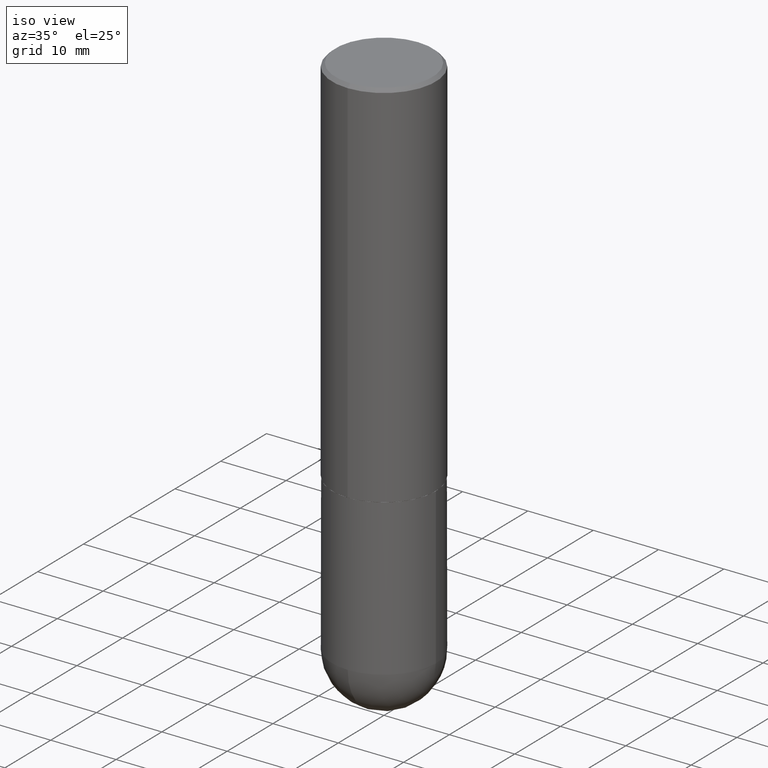
[diagram: clean part render]
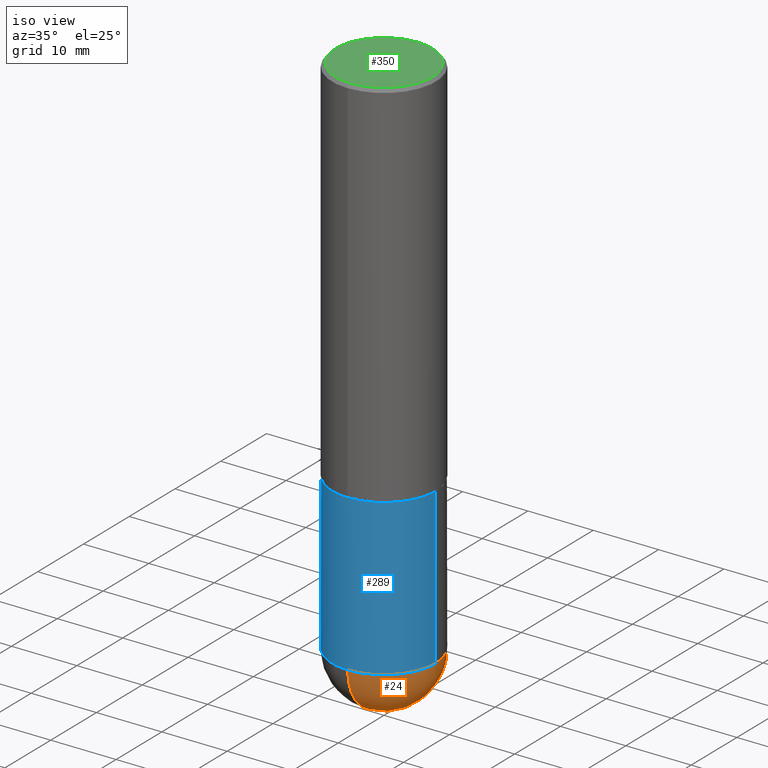
[diagram: same view with three faces highlighted in distinct colors, each labeled with its STEP entity id]
A machine part, iso view with three faces highlighted in distinct colors.
Their STEP definitions:

[orange] entity #24 — the highlighted spherical surface has radius 7.9375 mm.
#3 = DIRECTION ( 'NONE',  ( 1.000000000000000000, -6.982962677686269077E-15, 0.000000000000000000 ) ) ;
#5 = EDGE_CURVE ( 'NONE', #403, #271, #26, .T. ) ;
#24 = ADVANCED_FACE ( 'NONE', ( #273 ), #123, .T. ) ;
#26 = CIRCLE ( 'NONE', #283, 0.3125000000000002776 ) ;
#27 = CIRCLE ( 'NONE', #239, 0.3125000000000000000 ) ;
#43 = ORIENTED_EDGE ( 'NONE', *, *, #5, .T. ) ;
#85 = CARTESIAN_POINT ( 'NONE',  ( 7.463812041801236655E-29, -1.160327913570257494E-14, -3.187500000000000000 ) ) ;
#94 = CARTESIAN_POINT ( 'NONE',  ( 7.794931819715121781E-29, -1.112909676756252622E-14, -3.187500000000000000 ) ) ;
#123 = SPHERICAL_SURFACE ( 'NONE', #232, 0.3125000000000002776 ) ;
#129 = CARTESIAN_POINT ( 'NONE',  ( 7.463812041801236655E-29, -1.160327913570257494E-14, -3.187500000000000000 ) ) ;
#136 = VERTEX_POINT ( 'NONE', #412 ) ;
#156 = ORIENTED_EDGE ( 'NONE', *, *, #237, .F. ) ;
#189 = ORIENTED_EDGE ( 'NONE', *, *, #210, .F. ) ;
#199 = CARTESIAN_POINT ( 'NONE',  ( 7.794931819715121781E-29, -1.112909676756252622E-14, -3.187500000000000000 ) ) ;
#210 = EDGE_CURVE ( 'NONE', #403, #211, #347, .T. ) ;
#211 = VERTEX_POINT ( 'NONE', #355 ) ;
#213 = AXIS2_PLACEMENT_3D ( 'NONE', #94, #381, #356 ) ;
#220 = CARTESIAN_POINT ( 'NONE',  ( 7.463812041801236655E-29, -1.160327913570257494E-14, -3.187500000000000000 ) ) ;
#232 = AXIS2_PLACEMENT_3D ( 'NONE', #220, #346, #372 ) ;
#235 = ORIENTED_EDGE ( 'NONE', *, *, #295, .F. ) ;
#237 = EDGE_CURVE ( 'NONE', #136, #271, #277, .T. ) ;
#239 = AXIS2_PLACEMENT_3D ( 'NONE', #199, #390, #3 ) ;
#256 = DIRECTION ( 'NONE',  ( -1.000000000000000000, 7.105427357601001070E-15, -4.926315508542082329E-29 ) ) ;
#271 = VERTEX_POINT ( 'NONE', #331 ) ;
#273 = FACE_OUTER_BOUND ( 'NONE', #377, .T. ) ;
#277 = CIRCLE ( 'NONE', #213, 0.3125000000000000000 ) ;
#283 = AXIS2_PLACEMENT_3D ( 'NONE', #85, #315, #341 ) ;
#292 = DIRECTION ( 'NONE',  ( -7.105427357601000281E-15, -1.000000000000000000, 0.000000000000000000 ) ) ;
#295 = EDGE_CURVE ( 'NONE', #211, #136, #27, .T. ) ;
#308 = AXIS2_PLACEMENT_3D ( 'NONE', #129, #256, #292 ) ;
#315 = DIRECTION ( 'NONE',  ( 1.000000000000000000, -6.982962677686265922E-15, 4.883557194083112340E-29 ) ) ;
#331 = CARTESIAN_POINT ( 'NONE',  ( 2.182175836777035261E-15, 0.3124999999999887867, -3.187500000000000888 ) ) ;
#341 = DIRECTION ( 'NONE',  ( 6.982962677686265922E-15, 1.000000000000000000, 0.000000000000000000 ) ) ;
#346 = DIRECTION ( 'NONE',  ( -1.000000000000000000, 6.982962677686265922E-15, -4.883557194083112901E-29 ) ) ;
#347 = CIRCLE ( 'NONE', #308, 0.3125000000000002776 ) ;
#355 = CARTESIAN_POINT ( 'NONE',  ( -2.220446049250237350E-15, -0.3125000000000114908, -3.187499999999998668 ) ) ;
#356 = DIRECTION ( 'NONE',  ( 1.000000000000000000, -6.982962677686269077E-15, 0.000000000000000000 ) ) ;
#364 = CARTESIAN_POINT ( 'NONE',  ( 8.241383017002520278E-29, -1.267523194785438148E-14, -3.500000000000000444 ) ) ;
#372 = DIRECTION ( 'NONE',  ( 6.982962677686265922E-15, 1.000000000000000000, -3.496765431890253764E-15 ) ) ;
#377 = EDGE_LOOP ( 'NONE', ( #189, #43, #156, #235 ) ) ;
#381 = DIRECTION ( 'NONE',  ( -2.445468806185136597E-29, 3.491481338843145583E-15, 1.000000000000000000 ) ) ;
#390 = DIRECTION ( 'NONE',  ( -2.445468806185136597E-29, 3.491481338843145583E-15, 1.000000000000000000 ) ) ;
#403 = VERTEX_POINT ( 'NONE', #364 ) ;
#412 = CARTESIAN_POINT ( 'NONE',  ( 0.3125000000000000000, -1.167464072675676384E-14, -3.187500000000000000 ) ) ;

[blue] entity #289 — the highlighted cylindrical surface (partial cylindrical patch) has radius 7.9375 mm, axis along (-0, 0, 1).
#3 = DIRECTION ( 'NONE',  ( 1.000000000000000000, -6.982962677686269077E-15, 0.000000000000000000 ) ) ;
#14 = ORIENTED_EDGE ( 'NONE', *, *, #176, .F. ) ;
#17 = EDGE_CURVE ( 'NONE', #136, #217, #318, .T. ) ;
#19 = VECTOR ( 'NONE', #320, 39.37007874015748143 ) ;
#27 = CIRCLE ( 'NONE', #239, 0.3125000000000000000 ) ;
#32 = DIRECTION ( 'NONE',  ( 1.000000000000000000, -6.982962677686269077E-15, 0.000000000000000000 ) ) ;
#36 = ORIENTED_EDGE ( 'NONE', *, *, #295, .T. ) ;
#38 = AXIS2_PLACEMENT_3D ( 'NONE', #172, #361, #32 ) ;
#40 = VERTEX_POINT ( 'NONE', #49 ) ;
#49 = CARTESIAN_POINT ( 'NONE',  ( -0.3125000000000000000, -7.272018840729490833E-15, -3.187500000000000000 ) ) ;
#70 = FACE_OUTER_BOUND ( 'NONE', #72, .T. ) ;
#72 = EDGE_LOOP ( 'NONE', ( #14, #146, #36, #158, #101 ) ) ;
#99 = CARTESIAN_POINT ( 'NONE',  ( -0.3125000000000000000, -7.272018840729487678E-15, -2.249999999999999556 ) ) ;
#101 = ORIENTED_EDGE ( 'NONE', *, *, #229, .F. ) ;
#119 = AXIS2_PLACEMENT_3D ( 'NONE', #359, #198, #231 ) ;
#136 = VERTEX_POINT ( 'NONE', #412 ) ;
#146 = ORIENTED_EDGE ( 'NONE', *, *, #380, .T. ) ;
#147 = VECTOR ( 'NONE', #279, 39.37007874015748143 ) ;
#151 = CARTESIAN_POINT ( 'NONE',  ( 0.3125000000000000000, -2.182175836776958347E-15, 1.523805242436230075E-29 ) ) ;
#158 = ORIENTED_EDGE ( 'NONE', *, *, #17, .T. ) ;
#162 = CIRCLE ( 'NONE', #204, 0.3125000000000000000 ) ;
#163 = LINE ( 'NONE', #287, #19 ) ;
#172 = CARTESIAN_POINT ( 'NONE',  ( 7.794931819715121781E-29, -1.112909676756252622E-14, -3.187500000000000000 ) ) ;
#176 = EDGE_CURVE ( 'NONE', #40, #299, #163, .T. ) ;
#177 = CYLINDRICAL_SURFACE ( 'NONE', #119, 0.3125000000000000000 ) ;
#194 = DIRECTION ( 'NONE',  ( 1.000000000000000000, -6.982962677686269077E-15, 0.000000000000000000 ) ) ;
#198 = DIRECTION ( 'NONE',  ( -2.445468806185136597E-29, 3.491481338843145583E-15, 1.000000000000000000 ) ) ;
#199 = CARTESIAN_POINT ( 'NONE',  ( 7.794931819715121781E-29, -1.112909676756252622E-14, -3.187500000000000000 ) ) ;
#204 = AXIS2_PLACEMENT_3D ( 'NONE', #319, #386, #194 ) ;
#211 = VERTEX_POINT ( 'NONE', #355 ) ;
#217 = VERTEX_POINT ( 'NONE', #385 ) ;
#226 = CIRCLE ( 'NONE', #38, 0.3125000000000000000 ) ;
#229 = EDGE_CURVE ( 'NONE', #299, #217, #162, .T. ) ;
#231 = DIRECTION ( 'NONE',  ( 1.000000000000000000, -6.982962677686266711E-15, 4.876176775795936353E-29 ) ) ;
#239 = AXIS2_PLACEMENT_3D ( 'NONE', #199, #390, #3 ) ;
#279 = DIRECTION ( 'NONE',  ( -2.445468806185136877E-29, 3.491481338843145188E-15, 1.000000000000000000 ) ) ;
#287 = CARTESIAN_POINT ( 'NONE',  ( -0.3125000000000000000, 2.220446049250313081E-15, -1.537167215704658232E-29 ) ) ;
#289 = ADVANCED_FACE ( 'NONE', ( #70 ), #177, .T. ) ;
#295 = EDGE_CURVE ( 'NONE', #211, #136, #27, .T. ) ;
#299 = VERTEX_POINT ( 'NONE', #99 ) ;
#318 = LINE ( 'NONE', #151, #147 ) ;
#319 = CARTESIAN_POINT ( 'NONE',  ( 5.502304813916556222E-29, -7.855833012397076871E-15, -2.249999999999999556 ) ) ;
#320 = DIRECTION ( 'NONE',  ( -2.445468806185136877E-29, 3.491481338843145188E-15, 1.000000000000000000 ) ) ;
#355 = CARTESIAN_POINT ( 'NONE',  ( -2.220446049250237350E-15, -0.3125000000000114908, -3.187499999999998668 ) ) ;
#359 = CARTESIAN_POINT ( 'NONE',  ( 0.000000000000000000, 0.000000000000000000, 0.000000000000000000 ) ) ;
#361 = DIRECTION ( 'NONE',  ( -2.445468806185136597E-29, 3.491481338843145583E-15, 1.000000000000000000 ) ) ;
#380 = EDGE_CURVE ( 'NONE', #40, #211, #226, .T. ) ;
#385 = CARTESIAN_POINT ( 'NONE',  ( 0.3125000000000000000, -1.003800884917403522E-14, -2.249999999999999556 ) ) ;
#386 = DIRECTION ( 'NONE',  ( -2.445468806185136597E-29, 3.491481338843145583E-15, 1.000000000000000000 ) ) ;
#390 = DIRECTION ( 'NONE',  ( -2.445468806185136597E-29, 3.491481338843145583E-15, 1.000000000000000000 ) ) ;
#412 = CARTESIAN_POINT ( 'NONE',  ( 0.3125000000000000000, -1.167464072675676384E-14, -3.187500000000000000 ) ) ;

[green] entity #350 — the highlighted planar face has unit normal (0, -0, -1).
#31 = CARTESIAN_POINT ( 'NONE',  ( 6.296900960775503853E-46, -8.987936348817900663E-32, -2.574587102886920740E-17 ) ) ;
#35 = PLANE ( 'NONE',  #352 ) ;
#39 = FACE_OUTER_BOUND ( 'NONE', #369, .T. ) ;
#81 = VERTEX_POINT ( 'NONE', #190 ) ;
#102 = AXIS2_PLACEMENT_3D ( 'NONE', #31, #131, #252 ) ;
#127 = CARTESIAN_POINT ( 'NONE',  ( -2.075300644325888676E-15, -0.2925000000000001488, 9.953776244944845689E-16 ) ) ;
#131 = DIRECTION ( 'NONE',  ( -2.445790609964098896E-29, 3.491020497515737760E-15, 1.000000000000000000 ) ) ;
#143 = VERTEX_POINT ( 'NONE', #127 ) ;
#180 = CIRCLE ( 'NONE', #262, 0.2925000000000001488 ) ;
#190 = CARTESIAN_POINT ( 'NONE',  ( 2.112346210000096627E-15, 0.2925000000000001488, -1.046869366552222971E-15 ) ) ;
#205 = DIRECTION ( 'NONE',  ( -6.982962677686265922E-15, -1.000000000000000000, 3.491020497515737760E-15 ) ) ;
#219 = EDGE_CURVE ( 'NONE', #81, #143, #316, .T. ) ;
#238 = CARTESIAN_POINT ( 'NONE',  ( 6.296900960775503853E-46, -8.987936348817900663E-32, -2.574587102886920740E-17 ) ) ;
#252 = DIRECTION ( 'NONE',  ( -6.982962677686265922E-15, -1.000000000000000000, 3.491020497515737760E-15 ) ) ;
#262 = AXIS2_PLACEMENT_3D ( 'NONE', #238, #293, #205 ) ;
#263 = ORIENTED_EDGE ( 'NONE', *, *, #219, .T. ) ;
#293 = DIRECTION ( 'NONE',  ( -2.445790609964098896E-29, 3.491020497515737760E-15, 1.000000000000000000 ) ) ;
#297 = CARTESIAN_POINT ( 'NONE',  ( 2.042516583223233723E-15, 0.2925000000000001488, -1.033996431037788420E-15 ) ) ;
#304 = DIRECTION ( 'NONE',  ( 6.982962677686265922E-15, 1.000000000000000000, -3.491020497515737366E-15 ) ) ;
#316 = CIRCLE ( 'NONE', #102, 0.2925000000000001488 ) ;
#328 = DIRECTION ( 'NONE',  ( 2.445790609964098896E-29, -3.491020497515737366E-15, -1.000000000000000000 ) ) ;
#350 = ADVANCED_FACE ( 'NONE', ( #39 ), #35, .F. ) ;
#352 = AXIS2_PLACEMENT_3D ( 'NONE', #297, #328, #304 ) ;
#369 = EDGE_LOOP ( 'NONE', ( #263, #376 ) ) ;
#376 = ORIENTED_EDGE ( 'NONE', *, *, #410, .T. ) ;
#410 = EDGE_CURVE ( 'NONE', #143, #81, #180, .T. ) ;